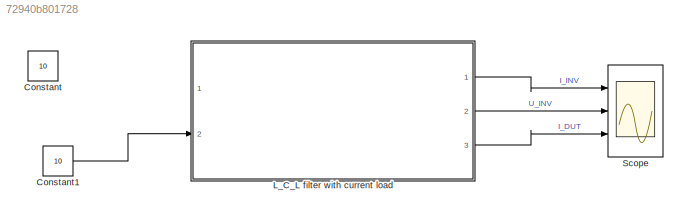
MODEL slx_72940b801728
KIND model
CONFIG AbsTol = auto
CONFIG EnableMultiTasking = off
CONFIG FixedStep = auto
CONFIG MaxStep = 1e-6
CONFIG MinStep = auto
CONFIG RelTol = 1e-3
CONFIG SampleTimeConstraint = Unconstrained
CONFIG Solver = VariableStepAuto
CONFIG SolverName = VariableStepAuto
CONFIG StartTime = 0.0
CONFIG StopTime = 10
BLOCK [Constant] Constant
  Value = 10
BLOCK [Constant] Constant1
  Value = 10
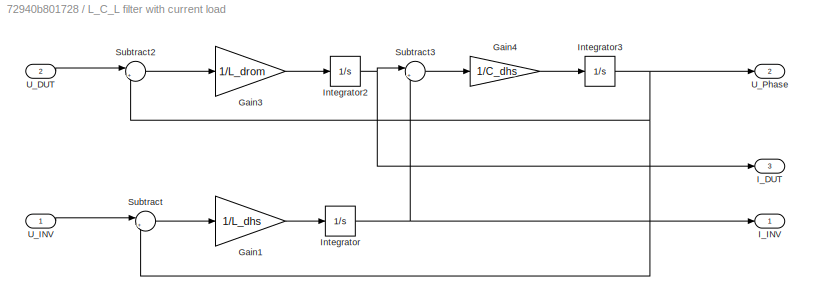
BLOCK [SubSystem] L_C_L filter with current load
  Ports = [2, 3]
  RequestExecContextInheritance = off
BLOCK [Gain] L_C_L filter with current load/Gain1
  Gain = 1/L_dhs
  OutDataTypeStr = Inherit: Inherit via internal rule
  ParamDataTypeStr = Inherit: Inherit via internal rule
  SaturateOnIntegerOverflow = off
BLOCK [Gain] L_C_L filter with current load/Gain3
  Gain = 1/L_drom
  OutDataTypeStr = Inherit: Inherit via internal rule
  ParamDataTypeStr = Inherit: Inherit via internal rule
  SaturateOnIntegerOverflow = off
BLOCK [Gain] L_C_L filter with current load/Gain4
  Gain = 1/C_dhs
  OutDataTypeStr = Inherit: Inherit via internal rule
  ParamDataTypeStr = Inherit: Inherit via internal rule
  SaturateOnIntegerOverflow = off
BLOCK [Outport] L_C_L filter with current load/I_DUT
  IconDisplay = Port number
  Port = 3
BLOCK [Outport] L_C_L filter with current load/I_INV
  IconDisplay = Port number
BLOCK [Integrator] L_C_L filter with current load/Integrator
  Ports = [1, 1]
BLOCK [Integrator] L_C_L filter with current load/Integrator2
  Ports = [1, 1]
BLOCK [Integrator] L_C_L filter with current load/Integrator3
  Ports = [1, 1]
BLOCK [Sum] L_C_L filter with current load/Subtract
  IconShape = round
  InputSameDT = off
  Inputs = |+-
  OutDataTypeStr = Inherit: Inherit via internal rule
  Ports = [2, 1]
  SaturateOnIntegerOverflow = off
BLOCK [Sum] L_C_L filter with current load/Subtract2
  IconShape = round
  InputSameDT = off
  Inputs = |+-
  OutDataTypeStr = Inherit: Inherit via internal rule
  Ports = [2, 1]
  SaturateOnIntegerOverflow = off
BLOCK [Sum] L_C_L filter with current load/Subtract3
  IconShape = round
  InputSameDT = off
  Inputs = |++
  OutDataTypeStr = Inherit: Inherit via internal rule
  Ports = [2, 1]
  SaturateOnIntegerOverflow = off
BLOCK [Inport] L_C_L filter with current load/U_DUT
  IconDisplay = Port number
  Port = 2
BLOCK [Inport] L_C_L filter with current load/U_INV
  IconDisplay = Port number
BLOCK [Outport] L_C_L filter with current load/U_Phase
  IconDisplay = Port number
  Port = 2
BLOCK [Scope] Scope
  Floating = off
  NumInputPorts = 3
  Ports = [3]
  ScopeSpecificationString = Simulink.scopes.TimeScopeBlockCfg('CurrentConfiguration', extmgr.ConfigurationSet(extmgr.Configuration('Core','General UI',true),extmgr.Configuration('Core','Source UI',true),extmgr.Configuration('Sources','WiredSimulink',true),extmgr.Configuration('Visuals','Time Domain',true,'SerializedDisplays',{struct('MinYLimReal','-60762.68207','MaxYLimReal','60767.13099','YLabelReal','','MinYLimMag','   0.0...<+1536ch>
LINE Constant1:1 -> L_C_L filter with current load:2
LINE L_C_L filter with current load/Gain1:1 -> L_C_L filter with current load/Integrator:1
LINE L_C_L filter with current load/Gain3:1 -> L_C_L filter with current load/Integrator2:1
LINE L_C_L filter with current load/Gain4:1 -> L_C_L filter with current load/Integrator3:1
NET L_C_L filter with current load/Integrator2:1 -> L_C_L filter with current load/I_DUT:1, L_C_L filter with current load/Subtract3:1
NET L_C_L filter with current load/Integrator3:1 -> L_C_L filter with current load/Subtract2:2, L_C_L filter with current load/Subtract:2, L_C_L filter with current load/U_Phase:1
NET L_C_L filter with current load/Integrator:1 -> L_C_L filter with current load/I_INV:1, L_C_L filter with current load/Subtract3:2
LINE L_C_L filter with current load/Subtract2:1 -> L_C_L filter with current load/Gain3:1
LINE L_C_L filter with current load/Subtract3:1 -> L_C_L filter with current load/Gain4:1
LINE L_C_L filter with current load/Subtract:1 -> L_C_L filter with current load/Gain1:1
LINE L_C_L filter with current load/U_DUT:1 -> L_C_L filter with current load/Subtract2:1
LINE L_C_L filter with current load/U_INV:1 -> L_C_L filter with current load/Subtract:1
LINE L_C_L filter with current load:1 -> Scope:1
LINE L_C_L filter with current load:2 -> Scope:2
LINE L_C_L filter with current load:3 -> Scope:3
note: NET lines group one-source signal fan-out (src -> all destinations, sorted); 1:1 wires keep LINE
